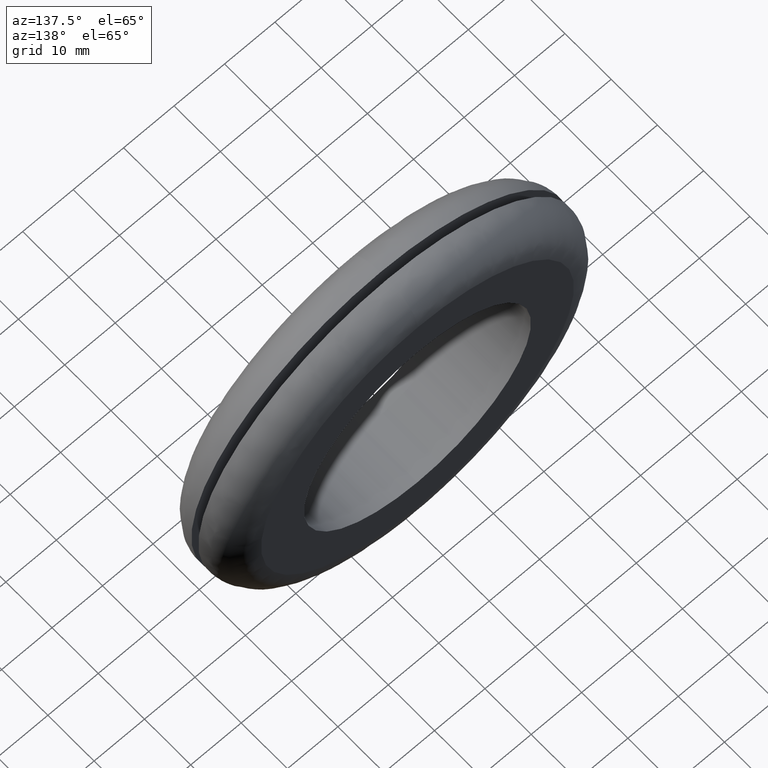
[diagram: clean part render]
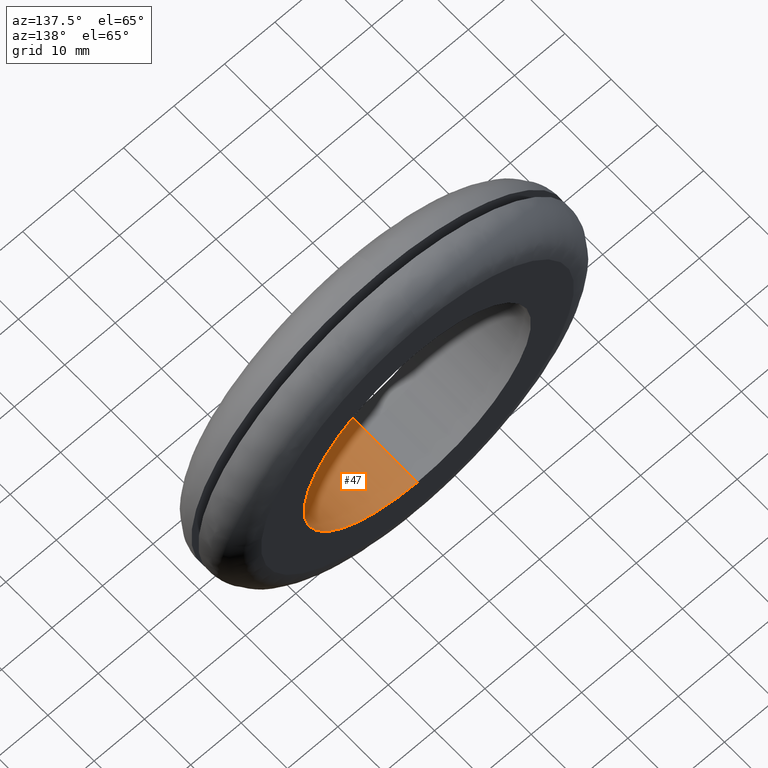
[diagram: same view with one face highlighted and labeled with its STEP entity id]
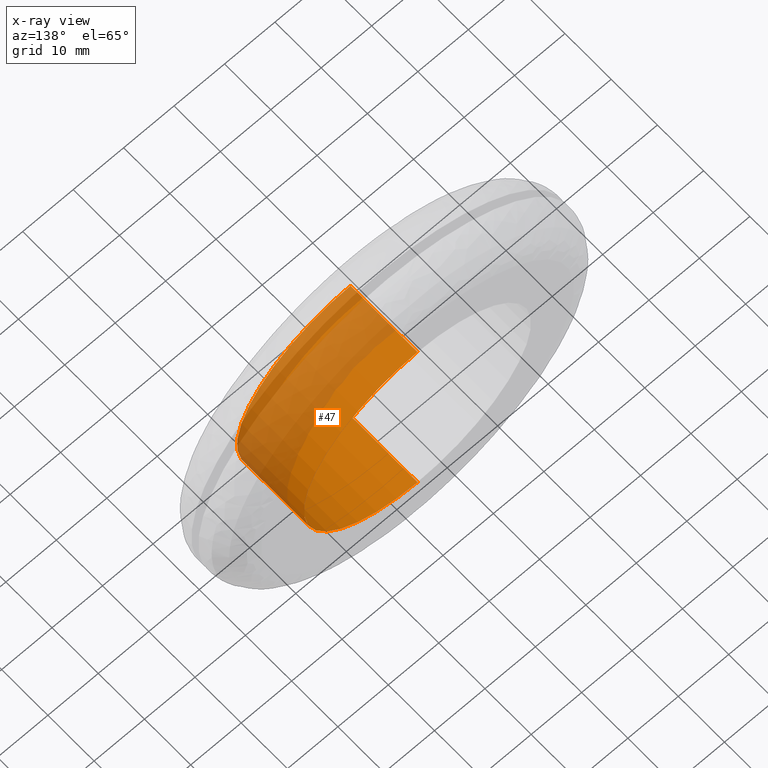
[diagram: x-ray of the same camera — body ghosted, the highlighted face saturated]
A machine part, auxiliary view. The second image highlights one B-rep face of the part: STEP entity #47.
The next image is the same camera in x-ray: the body ghosted, the highlighted face saturated — about 49% of this face is hidden behind the body in this view.
In plain terms, the highlighted cylindrical surface (partial cylindrical patch) has radius 22.5 mm, axis along (-0, -1, -0).
Its self-contained STEP definition (entity closure, byte-faithful):
#47=ADVANCED_FACE('',(#127),#126,.F.);
#126=CYLINDRICAL_SURFACE('',#218,2.25000000000E+001);
#127=FACE_OUTER_BOUND('',#219,.T.);
#215=CARTESIAN_POINT('',(0.00000000000E+000,7.24999999567E+000,0.00000000000E+000));
#216=DIRECTION('',(-0.00000000000E+000,-1.00000000000E+000,-0.00000000000E+000));
#217=DIRECTION('',(-1.22464679915E-016,-0.00000000000E+000,1.00000000000E+000));
#218=AXIS2_PLACEMENT_3D('',#215,#216,#217);
#219=EDGE_LOOP('',(#352,#353,#354,#355));
#352=ORIENTED_EDGE('',*,*,#386,.T.);
#353=ORIENTED_EDGE('',*,*,#390,.F.);
#354=ORIENTED_EDGE('',*,*,#378,.F.);
#355=ORIENTED_EDGE('',*,*,#391,.T.);
#378=EDGE_CURVE('',#438,#439,#440,.T.);
#386=EDGE_CURVE('',#494,#495,#496,.T.);
#390=EDGE_CURVE('',#439,#495,#520,.T.);
#391=EDGE_CURVE('',#438,#494,#526,.T.);
#438=VERTEX_POINT('',#586);
#439=VERTEX_POINT('',#587);
#440=CIRCLE('',#591,2.25000000000E+001);
#494=VERTEX_POINT('',#626);
#495=VERTEX_POINT('',#627);
#496=CIRCLE('',#631,2.25000000000E+001);
#520=(BOUNDED_CURVE() B_SPLINE_CURVE(1,(#640,#641),.UNSPECIFIED.,.F.,.F.) B_SPLINE_CURVE_WITH_KNOTS((2,2),(8.33333328360E-002,9.16666666871E-001),.UNSPECIFIED.) CURVE() GEOMETRIC_REPRESENTATION_ITEM() RATIONAL_B_SPLINE_CURVE((1.00000000000E+000,1.00000000000E+000)) REPRESENTATION_ITEM('') );
#526=(BOUNDED_CURVE() B_SPLINE_CURVE(1,(#642,#643),.UNSPECIFIED.,.F.,.F.) B_SPLINE_CURVE_WITH_KNOTS((2,2),(8.33333333333E-002,9.16666666667E-001),.UNSPECIFIED.) CURVE() GEOMETRIC_REPRESENTATION_ITEM() RATIONAL_B_SPLINE_CURVE((7.50000000000E-001,7.50000000000E-001)) REPRESENTATION_ITEM('') );
#586=CARTESIAN_POINT('',(-2.75536429610E-015,1.45000000000E+001,-2.25000000000E+001));
#587=CARTESIAN_POINT('',(0.00000000000E+000,1.45000000000E+001,2.25000000000E+001));
#588=CARTESIAN_POINT('',(0.00000000000E+000,1.45000000000E+001,0.00000000000E+000));
#589=DIRECTION('',(0.00000000000E+000,-1.00000000000E+000,0.00000000000E+000));
#590=DIRECTION('',(-0.00000000000E+000,-0.00000000000E+000,-1.00000000000E+000));
#591=AXIS2_PLACEMENT_3D('',#588,#589,#590);
#626=CARTESIAN_POINT('',(2.36847578587E-015,0.00000000000E+000,-2.25000000000E+001));
#627=CARTESIAN_POINT('',(3.86888510230E-016,0.00000000000E+000,2.25000000000E+001));
#628=CARTESIAN_POINT('',(0.00000000000E+000,0.00000000000E+000,0.00000000000E+000));
#629=DIRECTION('',(0.00000000000E+000,-1.00000000000E+000,0.00000000000E+000));
#630=DIRECTION('',(-1.05265590483E-016,-0.00000000000E+000,1.00000000000E+000));
#631=AXIS2_PLACEMENT_3D('',#628,#629,#630);
#640=CARTESIAN_POINT('',(-2.75545529809E-015,1.45000000087E+001,2.25000000000E+001));
#641=CARTESIAN_POINT('',(-2.75545529809E-015,-3.54882212505E-009,2.25000000000E+001));
#642=CARTESIAN_POINT('',(2.36847578587E-015,1.45000000000E+001,-2.25000000000E+001));
#643=CARTESIAN_POINT('',(2.36847578587E-015,-4.44089209850E-016,-2.25000000000E+001));